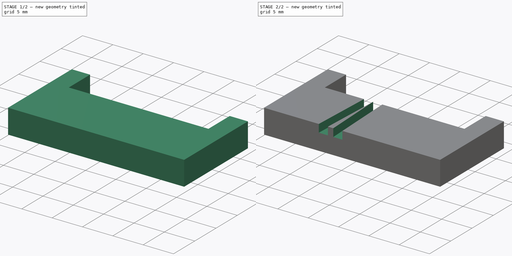
[diagram: build sequence overview — one tinted view per stage of 2, left to right]
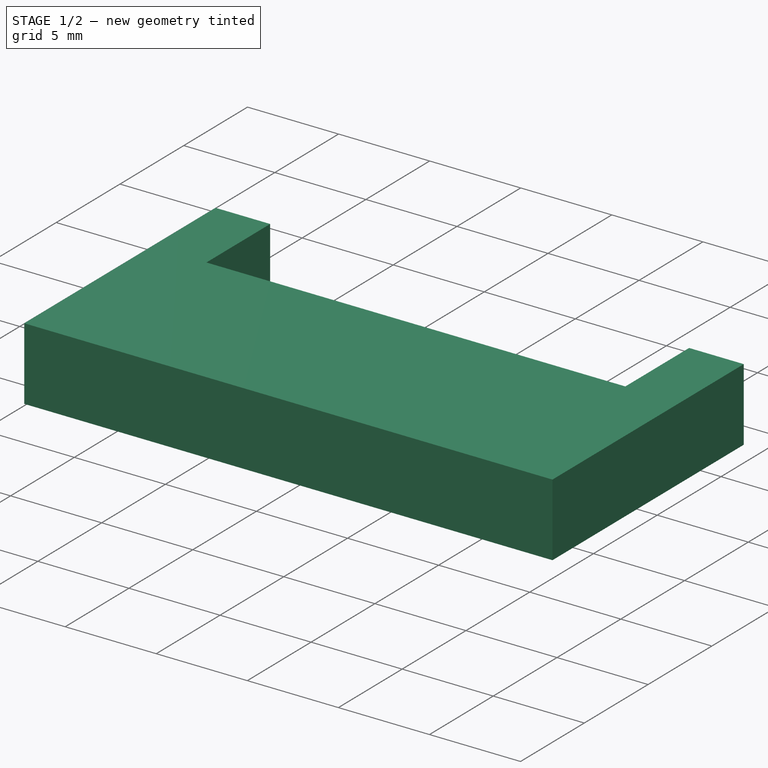
[diagram: stage 1 of 2 — iso view after this stage's code; geometry added in this stage tinted green]
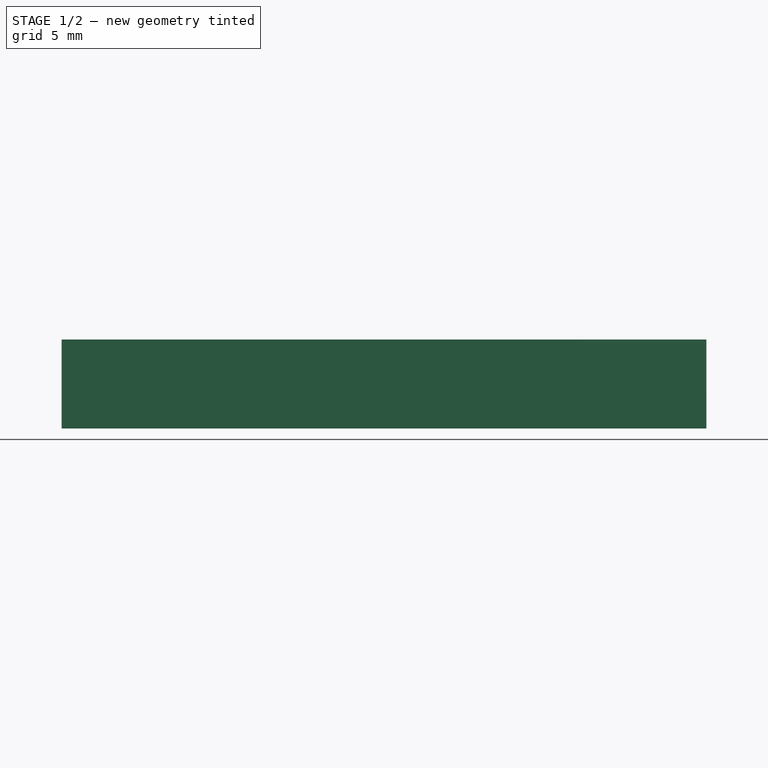
[diagram: stage 1 of 2 — front view after this stage's code; geometry added in this stage tinted green]
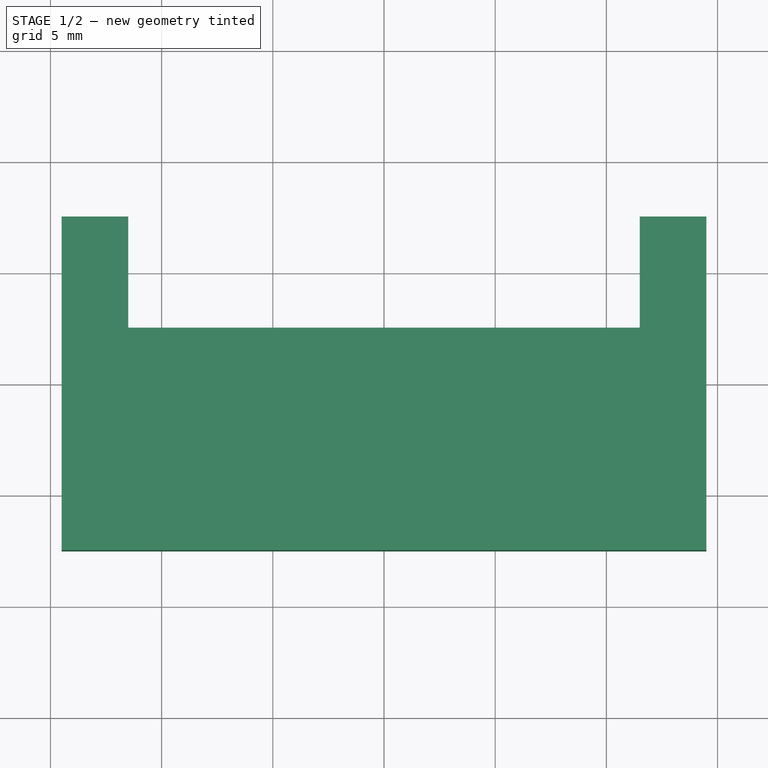
[diagram: stage 1 of 2 — top view after this stage's code; geometry added in this stage tinted green]
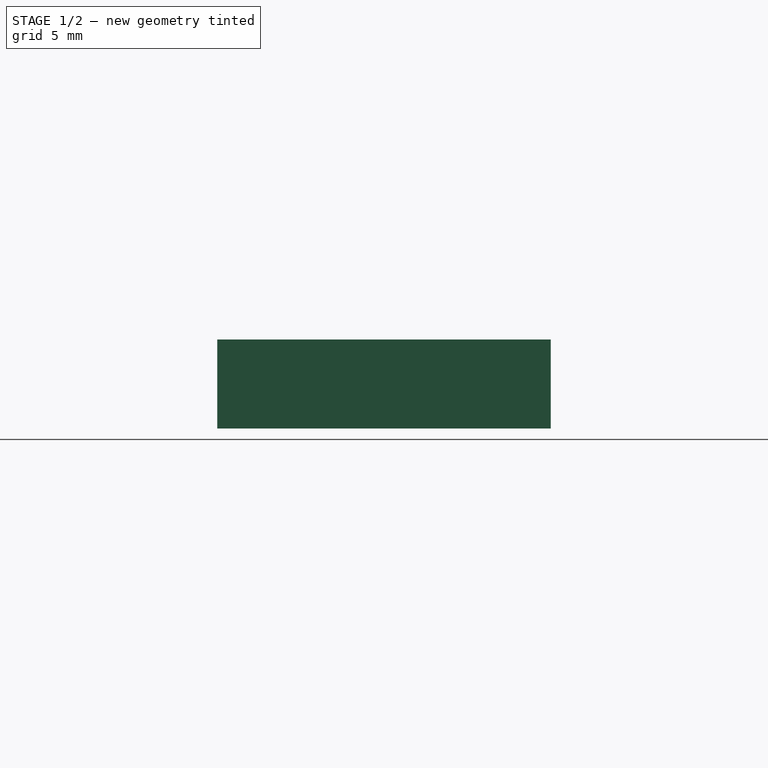
[diagram: stage 1 of 2 — right view after this stage's code; geometry added in this stage tinted green]
FCSTD DOCUMENT  (FreeCAD 0.18.4R)
Label: laser_jig
License: All rights reserved
LicenseURL: http://en.wikipedia.org/wiki/All_rights_reserved
objects: Sketcher::SketchObject×3, PartDesign::Pocket×2, PartDesign::Pad×1, PartDesign::Body×1
note: 10 computed .brp shape members not serialized (recipe doc carries the construction recipe); baked Part::Feature solids carry a one-line shape summary decoded from their .brp

FEATURE [Sketcher::SketchObject] Sketch
  MapMode = 5
  Support = -> [XY_Plane]
  sketch-geometry (8):
    g0: LineSegment StartX=-14.5 StartY=7.5 StartZ=0 EndX=-11.5 EndY=7.5 EndZ=0
    g1: LineSegment StartX=14.5 StartY=7.5 StartZ=0 EndX=14.5 EndY=-7.5 EndZ=0
    g2: LineSegment StartX=14.5 StartY=-7.5 StartZ=0 EndX=-14.5 EndY=-7.5 EndZ=0
    g3: LineSegment StartX=-14.5 StartY=-7.5 StartZ=0 EndX=-14.5 EndY=7.5 EndZ=0
    g4: LineSegment StartX=11.5 StartY=7.5 StartZ=0 EndX=11.5 EndY=2.5 EndZ=0
    g5: LineSegment StartX=11.5 StartY=2.5 StartZ=0 EndX=-11.5 EndY=2.5 EndZ=0
    g6: LineSegment StartX=-11.5 StartY=2.5 StartZ=0 EndX=-11.5 EndY=7.5 EndZ=0
    g7: LineSegment StartX=11.5 StartY=7.5 StartZ=0 EndX=14.5 EndY=7.5 EndZ=0
  constraints (21):
    c: Coincident(g7,g1)
    c: Coincident(g1,g2)
    c: Coincident(g2,g3)
    c: Coincident(g3,g0)
    c: Horizontal(g0)
    c: Horizontal(g2)
    c: Vertical(g1)
    c: Vertical(g3)
    c: Symmetric(g7,g2,g-1)
    c: Coincident(g4,g5)
    c: Coincident(g5,g6)
    c: Vertical(g4)
    c: Vertical(g6)
    c: Coincident(g0,g6)
    c: Coincident(g7,g4)
    c: Tangent(g0,g7)
    c: DistanceY(g6,g6) = 5
    c: DistanceX(g5,g5) = 23
    c: Symmetric(g4,g5,g-2)
    c: DistanceX(g7,g7) = 3
    c: DistanceY(g1,g4) = 10
FEATURE [PartDesign::Pad] Pad
  Length = 4
  Length2 = 100
  Profile = -> Sketch
  Refine = true
  Type = 0
FEATURE [Sketcher::SketchObject] Sketch001
  ExternalGeometry = -> [Pad]
  MapMode = 5
  Placement = pos=(0,0,0) rot=(1,0,0;3.14159rad)
  Support = -> [Pad]
  sketch-geometry (4):
    g0: LineSegment StartX=-11.5 StartY=-4e-16 StartZ=0 EndX=0.5 EndY=-4e-16 EndZ=0
    g1: LineSegment StartX=0.5 StartY=-4e-16 StartZ=0 EndX=0.5 EndY=-2.5 EndZ=0
    g2: LineSegment StartX=0.5 StartY=-2.5 StartZ=0 EndX=-11.5 EndY=-2.5 EndZ=0
    g3: LineSegment StartX=-11.5 StartY=-2.5 StartZ=0 EndX=-11.5 EndY=-4e-16 EndZ=0
  constraints (11):
    c: Coincident(g0,g1)
    c: Coincident(g1,g2)
    c: Coincident(g2,g3)
    c: Coincident(g3,g0)
    c: Horizontal(g0)
    c: Horizontal(g2)
    c: Vertical(g1)
    c: Vertical(g3)
    c: Coincident(g-3,g2)
    c: DistanceY(g3,g3) = 2.5
    c: DistanceX(g0,g0) = 12
FEATURE [PartDesign::Pocket] Pocket
  BaseFeature = -> Pad
  Length = 2
  Length2 = 100
  Profile = -> Sketch001
  Refine = true
  Type = 0
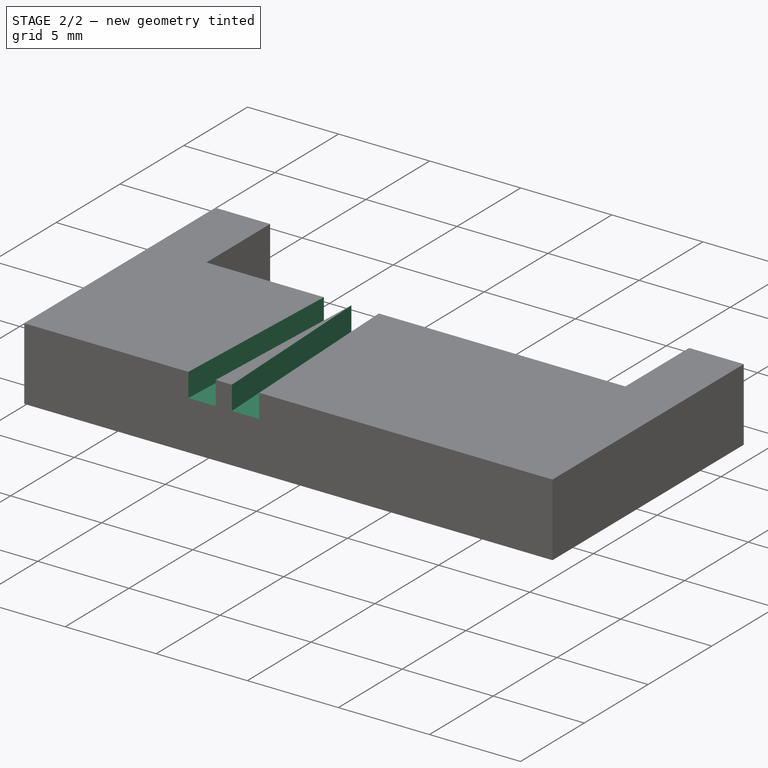
[diagram: stage 2 of 2 — iso view after this stage's code; geometry added in this stage tinted green]
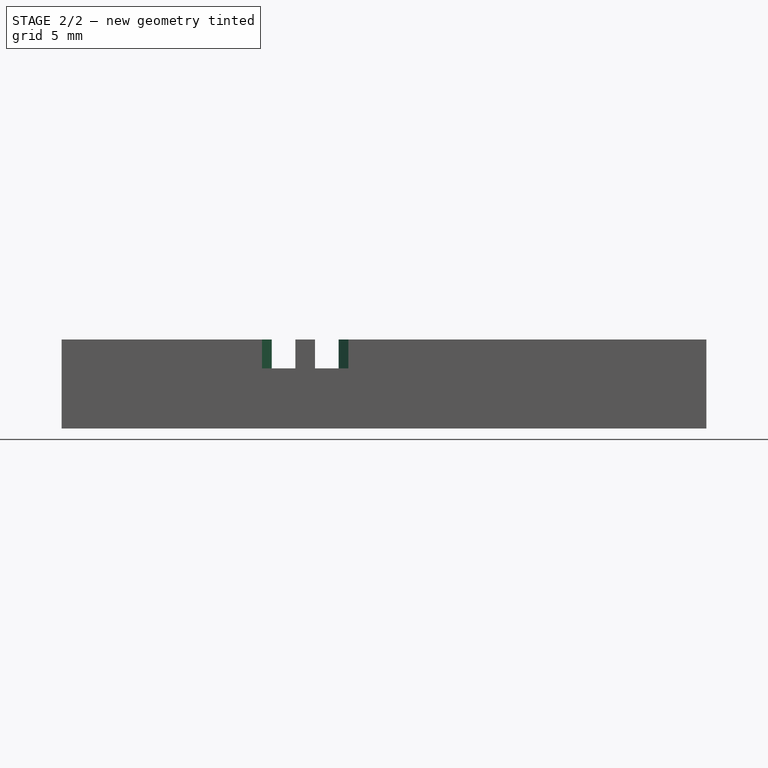
[diagram: stage 2 of 2 — front view after this stage's code; geometry added in this stage tinted green]
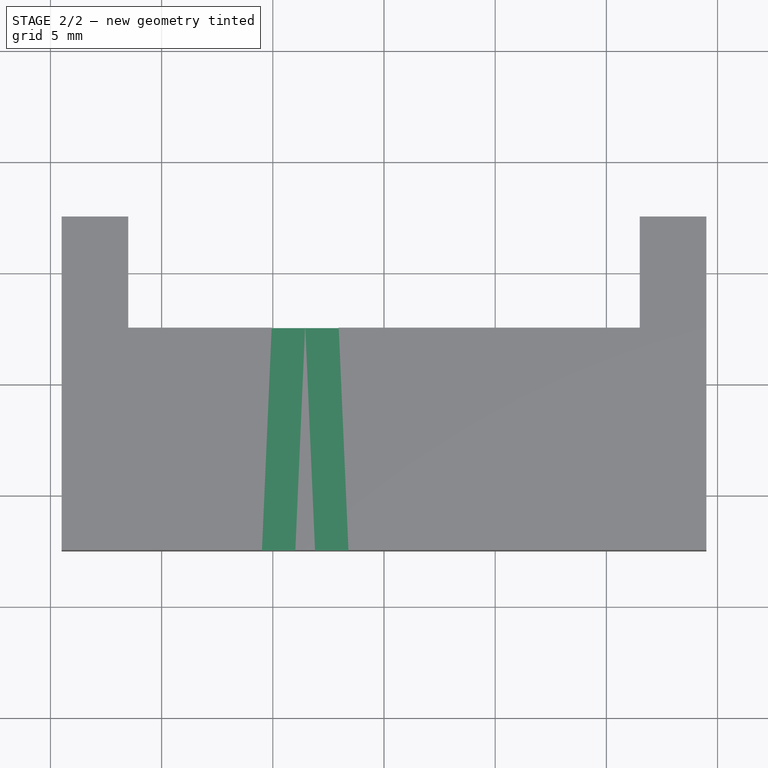
[diagram: stage 2 of 2 — top view after this stage's code; geometry added in this stage tinted green]
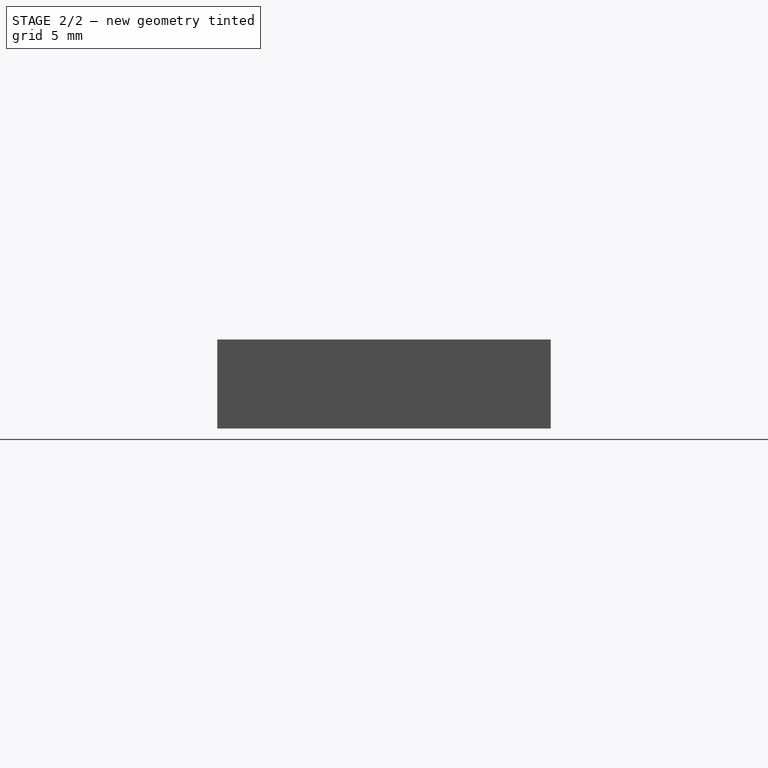
[diagram: stage 2 of 2 — right view after this stage's code; geometry added in this stage tinted green]
FEATURE [Sketcher::SketchObject] Sketch002
  ExternalGeometry = -> [Pocket]
  MapMode = 5
  Placement = pos=(0,0,4) rot=(0,0,1;0rad)
  Support = -> [Pocket]
  sketch-geometry (11):
    g0: LineSegment StartX=-5.05071 StartY=2.5 StartZ=0 EndX=-5.48732 EndY=-7.5 EndZ=0
    g1: LineSegment StartX=-5.48732 StartY=-7.5 StartZ=0 EndX=-3.98589 EndY=-7.5 EndZ=0
    g2: LineSegment StartX=-3.98589 StartY=-7.5 StartZ=0 EndX=-3.54929 EndY=2.5 EndZ=0
    g3: LineSegment StartX=-3.54929 StartY=2.5 StartZ=0 EndX=-5.05071 EndY=2.5 EndZ=0
    g4: LineSegment StartX=-3.53929 StartY=2.5 StartZ=0 EndX=-3.10268 EndY=-7.5 EndZ=0
    g5: LineSegment StartX=-3.10268 StartY=-7.5 StartZ=0 EndX=-1.60125 EndY=-7.5 EndZ=0
    g6: LineSegment StartX=-1.60125 StartY=-7.5 StartZ=0 EndX=-2.03786 EndY=2.5 EndZ=0
    g7: LineSegment StartX=-2.03786 StartY=2.5 StartZ=0 EndX=-3.53929 EndY=2.5 EndZ=0
    g8: GeomPoint X=-4.3 Y=2.5 Z=0
    g9: GeomPoint X=-2.78857 Y=2.5 Z=0
    g10: LineSegment [constr] StartX=-5.26902 StartY=-2.5 StartZ=0 EndX=-3.77045 EndY=-2.56543 EndZ=0
  constraints (29):
    c: PointOnObject(g0,g-3)
    c: PointOnObject(g0,g-4)
    c: Coincident(g0,g1)
    c: PointOnObject(g1,g-4)
    c: Coincident(g1,g2)
    c: PointOnObject(g2,g-3)
    c: Coincident(g2,g3)
    c: Coincident(g3,g0)
    c: PointOnObject(g4,g-3)
    c: PointOnObject(g4,g-4)
    c: Coincident(g4,g5)
    c: PointOnObject(g5,g-4)
    c: Coincident(g5,g6)
    c: PointOnObject(g6,g-3)
    c: Coincident(g6,g7)
    c: Coincident(g7,g4)
    c: Equal(g2,g4)
    c: Equal(g1,g5)
    c: Parallel(g2,g0)
    c: Parallel(g4,g6)
    c: Symmetric(g6,g4,g9)
    c: Symmetric(g2,g0,g8)
    c: DistanceX(g-3,g8) = 7.2
    c: PointOnObject(g10,g2)
    c: Perpendicular(g0,g10)
    c: Distance(g10) = 1.5
    c: Angle(g2,g4) = 0.0872665
    c: Symmetric(g0,g0,g10)
    c: DistanceX(g2,g4) = 0.01
FEATURE [PartDesign::Pocket] Pocket001
  BaseFeature = -> Pocket
  Length = 1.3
  Length2 = 100
  Profile = -> Sketch002
  Refine = true
  Type = 0
FEATURE [PartDesign::Body] Body
  Group = -> [Sketch,Pad,Sketch001,Pocket,Sketch002,Pocket001]
  Origin = -> Origin
  Tip = -> Pocket001
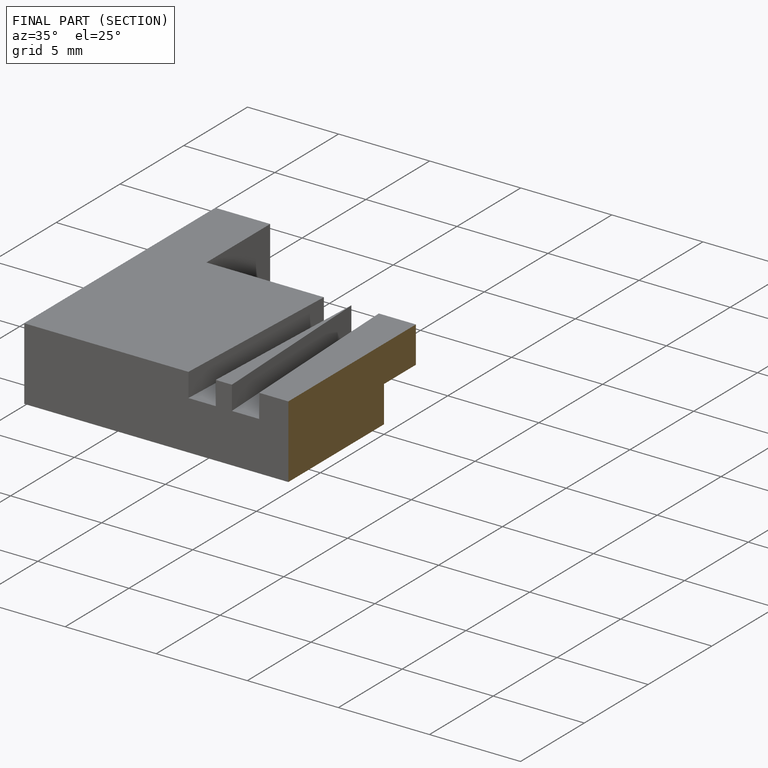
[diagram: finished part — half-section view (interior)]
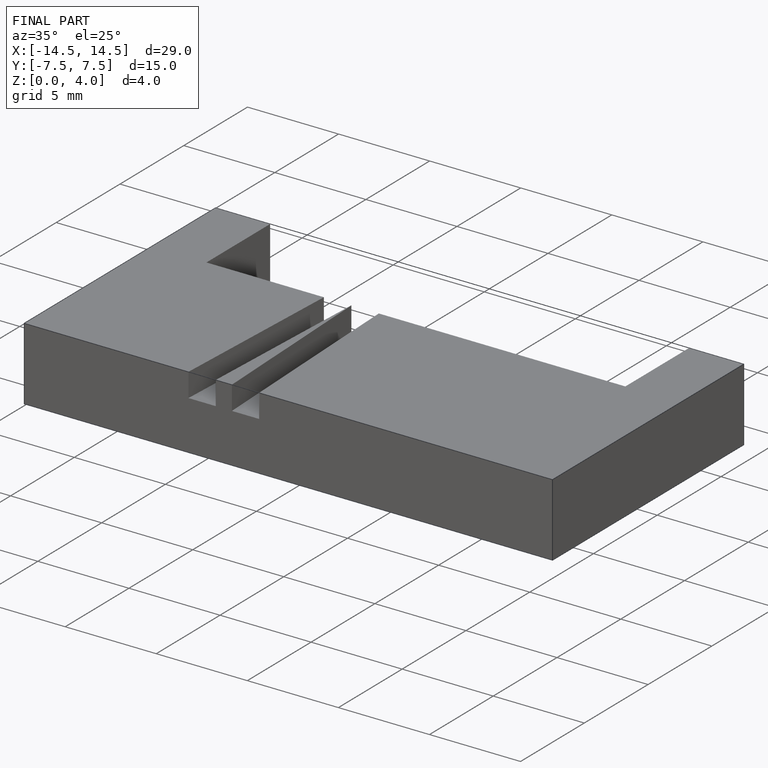
[diagram: finished part — iso view with bounding-box wireframe]
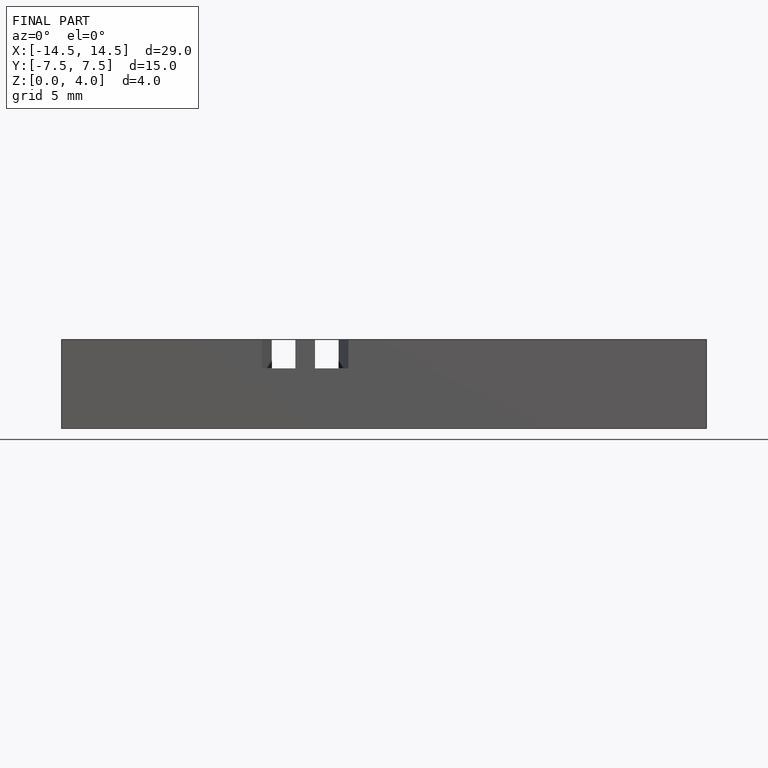
[diagram: finished part — front view with bounding-box wireframe]
